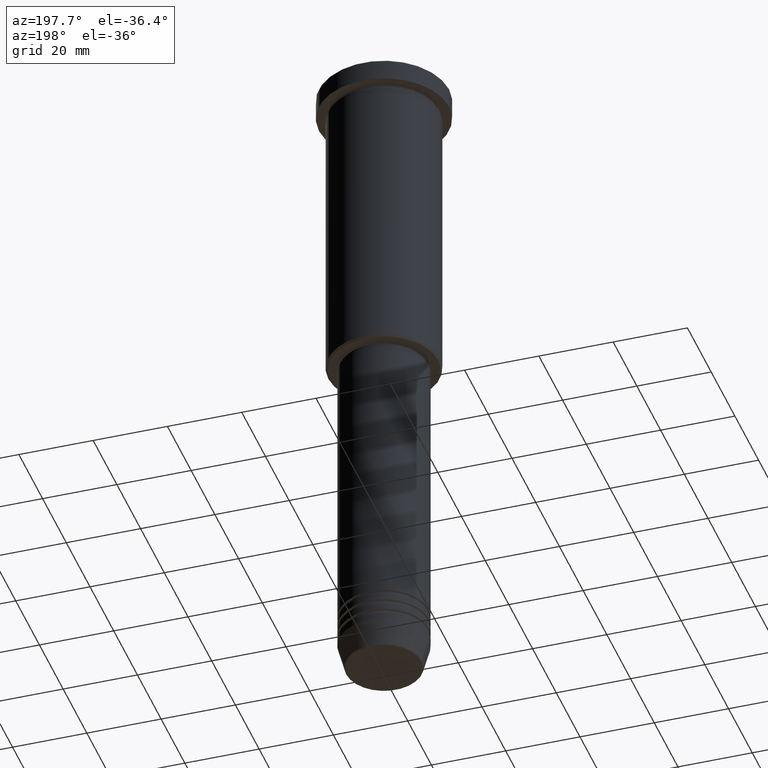
[diagram: clean part render]
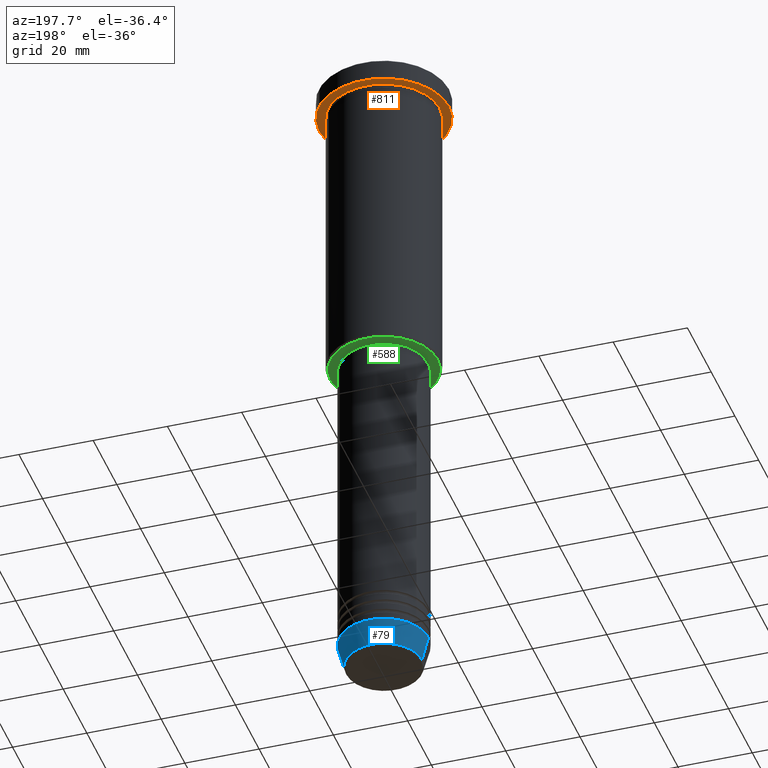
[diagram: same view with three faces highlighted in distinct colors, each labeled with its STEP entity id]
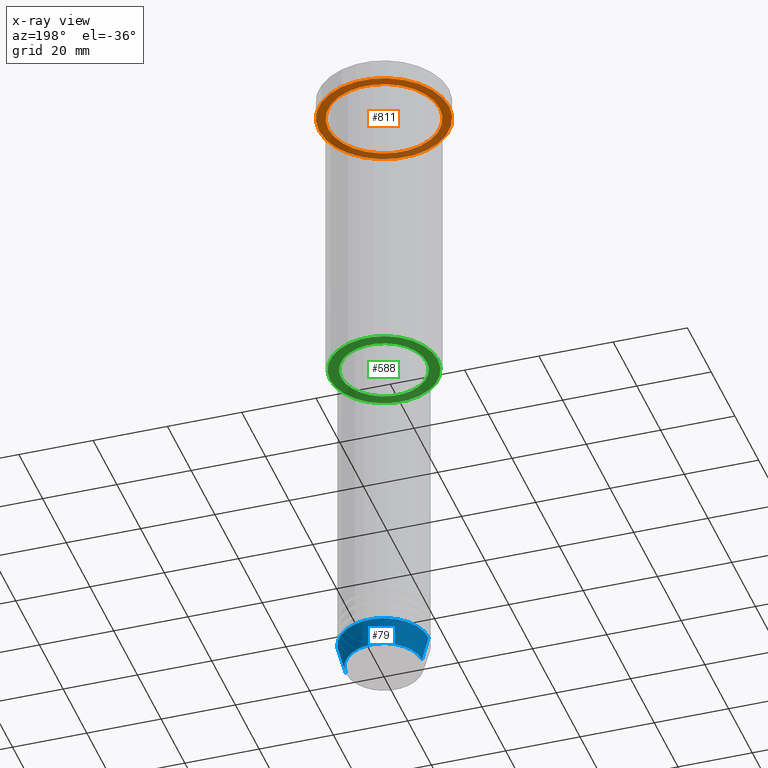
[diagram: x-ray of the same camera — body ghosted, the three highlighted faces saturated]
A machine part, auxiliary view with three faces highlighted in distinct colors.
The next image is the same camera in x-ray (body ghosted, the three faces saturated) — at least one of them is partly hidden behind the body in this view.
Their STEP definitions:

[orange] entity #811 — the highlighted planar face has unit normal (0, 0, -1).
#12 = CARTESIAN_POINT ( 'NONE',  ( 17.50000000000000000, 0.000000000000000000, -5.999999999999995559 ) ) ;
#82 = DIRECTION ( 'NONE',  ( -0.000000000000000000, -0.000000000000000000, 1.000000000000000000 ) ) ;
#84 = EDGE_CURVE ( 'NONE', #190, #949, #931, .T. ) ;
#106 = CIRCLE ( 'NONE', #591, 15.00000000000000000 ) ;
#190 = VERTEX_POINT ( 'NONE', #12 ) ;
#240 = CARTESIAN_POINT ( 'NONE',  ( 0.000000000000000000, 0.000000000000000000, -5.999999999999995559 ) ) ;
#259 = DIRECTION ( 'NONE',  ( 1.000000000000000000, 0.000000000000000000, 0.000000000000000000 ) ) ;
#268 = ORIENTED_EDGE ( 'NONE', *, *, #304, .F. ) ;
#286 = DIRECTION ( 'NONE',  ( 1.000000000000000000, 0.000000000000000000, 0.000000000000000000 ) ) ;
#298 = CIRCLE ( 'NONE', #1119, 17.50000000000000000 ) ;
#304 = EDGE_CURVE ( 'NONE', #949, #190, #298, .T. ) ;
#307 = EDGE_LOOP ( 'NONE', ( #826, #268 ) ) ;
#348 = ORIENTED_EDGE ( 'NONE', *, *, #1126, .T. ) ;
#380 = FACE_OUTER_BOUND ( 'NONE', #307, .T. ) ;
#390 = DIRECTION ( 'NONE',  ( -1.000000000000000000, 0.000000000000000000, 0.000000000000000000 ) ) ;
#412 = VERTEX_POINT ( 'NONE', #652 ) ;
#433 = DIRECTION ( 'NONE',  ( -0.000000000000000000, -0.000000000000000000, 1.000000000000000000 ) ) ;
#525 = DIRECTION ( 'NONE',  ( -1.000000000000000000, 0.000000000000000000, 0.000000000000000000 ) ) ;
#560 = VERTEX_POINT ( 'NONE', #1101 ) ;
#568 = DIRECTION ( 'NONE',  ( -0.000000000000000000, -0.000000000000000000, 1.000000000000000000 ) ) ;
#591 = AXIS2_PLACEMENT_3D ( 'NONE', #240, #433, #525 ) ;
#652 = CARTESIAN_POINT ( 'NONE',  ( 15.00000000000000000, 1.836970198721029589E-15, -5.999999999999994671 ) ) ;
#663 = AXIS2_PLACEMENT_3D ( 'NONE', #1022, #82, #286 ) ;
#701 = EDGE_CURVE ( 'NONE', #412, #560, #1102, .T. ) ;
#703 = EDGE_LOOP ( 'NONE', ( #348, #789 ) ) ;
#722 = PLANE ( 'NONE',  #893 ) ;
#739 = CARTESIAN_POINT ( 'NONE',  ( 0.000000000000000000, 17.50000000000000000, -5.999999999999995559 ) ) ;
#789 = ORIENTED_EDGE ( 'NONE', *, *, #701, .T. ) ;
#811 = ADVANCED_FACE ( 'NONE', ( #1021, #380 ), #722, .T. ) ;
#826 = ORIENTED_EDGE ( 'NONE', *, *, #84, .F. ) ;
#839 = AXIS2_PLACEMENT_3D ( 'NONE', #986, #909, #390 ) ;
#893 = AXIS2_PLACEMENT_3D ( 'NONE', #739, #1005, #1106 ) ;
#909 = DIRECTION ( 'NONE',  ( -0.000000000000000000, -0.000000000000000000, 1.000000000000000000 ) ) ;
#931 = CIRCLE ( 'NONE', #663, 17.50000000000000000 ) ;
#949 = VERTEX_POINT ( 'NONE', #1122 ) ;
#986 = CARTESIAN_POINT ( 'NONE',  ( 0.000000000000000000, 0.000000000000000000, -5.999999999999995559 ) ) ;
#1005 = DIRECTION ( 'NONE',  ( 0.000000000000000000, 0.000000000000000000, -1.000000000000000000 ) ) ;
#1021 = FACE_BOUND ( 'NONE', #703, .T. ) ;
#1022 = CARTESIAN_POINT ( 'NONE',  ( 0.000000000000000000, 0.000000000000000000, -5.999999999999995559 ) ) ;
#1101 = CARTESIAN_POINT ( 'NONE',  ( -15.00000000000000000, 0.000000000000000000, -5.999999999999994671 ) ) ;
#1102 = CIRCLE ( 'NONE', #839, 15.00000000000000000 ) ;
#1106 = DIRECTION ( 'NONE',  ( -1.000000000000000000, 0.000000000000000000, -0.000000000000000000 ) ) ;
#1112 = CARTESIAN_POINT ( 'NONE',  ( 0.000000000000000000, 0.000000000000000000, -5.999999999999995559 ) ) ;
#1119 = AXIS2_PLACEMENT_3D ( 'NONE', #1112, #568, #259 ) ;
#1122 = CARTESIAN_POINT ( 'NONE',  ( -17.50000000000000000, 2.143131898507868248E-15, -5.999999999999995559 ) ) ;
#1126 = EDGE_CURVE ( 'NONE', #560, #412, #106, .T. ) ;

[blue] entity #79 — the highlighted conical surface has half-angle 15 deg.
#49 = LINE ( 'NONE', #958, #758 ) ;
#79 = ADVANCED_FACE ( 'NONE', ( #394 ), #587, .T. ) ;
#129 = ORIENTED_EDGE ( 'NONE', *, *, #142, .T. ) ;
#142 = EDGE_CURVE ( 'NONE', #638, #1025, #173, .T. ) ;
#143 = ORIENTED_EDGE ( 'NONE', *, *, #1118, .F. ) ;
#145 = CARTESIAN_POINT ( 'NONE',  ( 0.000000000000000000, 0.000000000000000000, -174.0000000000000284 ) ) ;
#173 = CIRCLE ( 'NONE', #436, 10.22365507213719660 ) ;
#174 = VERTEX_POINT ( 'NONE', #471 ) ;
#181 = DIRECTION ( 'NONE',  ( 1.000000000000000000, 0.000000000000000000, 0.000000000000000000 ) ) ;
#196 = CARTESIAN_POINT ( 'NONE',  ( 0.000000000000000000, 0.000000000000000000, -174.0000000000000284 ) ) ;
#203 = EDGE_LOOP ( 'NONE', ( #129, #671, #1062, #143 ) ) ;
#233 = DIRECTION ( 'NONE',  ( 0.2588190451025213501, 0.000000000000000000, 0.9659258262890680902 ) ) ;
#264 = DIRECTION ( 'NONE',  ( -0.000000000000000000, -0.000000000000000000, 1.000000000000000000 ) ) ;
#313 = EDGE_CURVE ( 'NONE', #1025, #331, #328, .T. ) ;
#328 = LINE ( 'NONE', #808, #736 ) ;
#331 = VERTEX_POINT ( 'NONE', #626 ) ;
#335 = AXIS2_PLACEMENT_3D ( 'NONE', #196, #745, #662 ) ;
#394 = FACE_OUTER_BOUND ( 'NONE', #203, .T. ) ;
#414 = DIRECTION ( 'NONE',  ( -0.2588190451025213501, 3.169619151431772337E-17, 0.9659258262890680902 ) ) ;
#436 = AXIS2_PLACEMENT_3D ( 'NONE', #991, #830, #181 ) ;
#471 = CARTESIAN_POINT ( 'NONE',  ( 12.00000000000000000, 0.000000000000000000, -174.0000000000000284 ) ) ;
#575 = AXIS2_PLACEMENT_3D ( 'NONE', #145, #264, #642 ) ;
#587 = CONICAL_SURFACE ( 'NONE', #335, 12.00000000000000000, 0.2617993877991500740 ) ;
#626 = CARTESIAN_POINT ( 'NONE',  ( -12.00000000000000000, 1.469576158976823947E-15, -174.0000000000000284 ) ) ;
#638 = VERTEX_POINT ( 'NONE', #757 ) ;
#642 = DIRECTION ( 'NONE',  ( 1.000000000000000000, 0.000000000000000000, 0.000000000000000000 ) ) ;
#662 = DIRECTION ( 'NONE',  ( 1.000000000000000000, 0.000000000000000000, 0.000000000000000000 ) ) ;
#670 = CARTESIAN_POINT ( 'NONE',  ( -10.22365507213719837, 1.360806402472383336E-15, -180.6294095225512706 ) ) ;
#671 = ORIENTED_EDGE ( 'NONE', *, *, #313, .T. ) ;
#688 = EDGE_CURVE ( 'NONE', #174, #331, #966, .T. ) ;
#736 = VECTOR ( 'NONE', #414, 1000.000000000000000 ) ;
#745 = DIRECTION ( 'NONE',  ( -0.000000000000000000, -0.000000000000000000, 1.000000000000000000 ) ) ;
#757 = CARTESIAN_POINT ( 'NONE',  ( 10.22365507213719660, 0.000000000000000000, -180.6294095225512706 ) ) ;
#758 = VECTOR ( 'NONE', #233, 1000.000000000000000 ) ;
#808 = CARTESIAN_POINT ( 'NONE',  ( -12.00000000000000000, 1.469576158976823947E-15, -174.0000000000000284 ) ) ;
#830 = DIRECTION ( 'NONE',  ( -0.000000000000000000, -0.000000000000000000, 1.000000000000000000 ) ) ;
#958 = CARTESIAN_POINT ( 'NONE',  ( 12.00000000000000000, 0.000000000000000000, -174.0000000000000284 ) ) ;
#966 = CIRCLE ( 'NONE', #575, 12.00000000000000000 ) ;
#991 = CARTESIAN_POINT ( 'NONE',  ( 0.000000000000000000, 0.000000000000000000, -180.6294095225512706 ) ) ;
#1025 = VERTEX_POINT ( 'NONE', #670 ) ;
#1062 = ORIENTED_EDGE ( 'NONE', *, *, #688, .F. ) ;
#1118 = EDGE_CURVE ( 'NONE', #638, #174, #49, .T. ) ;

[green] entity #588 — the highlighted planar face has unit normal (0, 0, -1).
#36 = ORIENTED_EDGE ( 'NONE', *, *, #903, .T. ) ;
#90 = DIRECTION ( 'NONE',  ( -1.000000000000000000, 0.000000000000000000, 0.000000000000000000 ) ) ;
#152 = FACE_BOUND ( 'NONE', #708, .T. ) ;
#200 = AXIS2_PLACEMENT_3D ( 'NONE', #917, #1180, #376 ) ;
#276 = DIRECTION ( 'NONE',  ( 0.000000000000000000, 0.000000000000000000, -1.000000000000000000 ) ) ;
#360 = ORIENTED_EDGE ( 'NONE', *, *, #750, .T. ) ;
#376 = DIRECTION ( 'NONE',  ( -1.000000000000000000, 0.000000000000000000, -0.000000000000000000 ) ) ;
#379 = VERTEX_POINT ( 'NONE', #1063 ) ;
#458 = AXIS2_PLACEMENT_3D ( 'NONE', #566, #744, #90 ) ;
#459 = CARTESIAN_POINT ( 'NONE',  ( 0.000000000000000000, 0.000000000000000000, -86.00000000000000000 ) ) ;
#483 = VERTEX_POINT ( 'NONE', #523 ) ;
#512 = CARTESIAN_POINT ( 'NONE',  ( 11.50000000000000000, 0.000000000000000000, -86.00000000000000000 ) ) ;
#523 = CARTESIAN_POINT ( 'NONE',  ( -14.49999999999996980, 1.806354028742344224E-15, -86.00000000000000000 ) ) ;
#553 = PLANE ( 'NONE',  #200 ) ;
#566 = CARTESIAN_POINT ( 'NONE',  ( 0.000000000000000000, 0.000000000000000000, -86.00000000000000000 ) ) ;
#588 = ADVANCED_FACE ( 'NONE', ( #998, #152 ), #553, .T. ) ;
#611 = ORIENTED_EDGE ( 'NONE', *, *, #737, .T. ) ;
#613 = AXIS2_PLACEMENT_3D ( 'NONE', #1076, #784, #707 ) ;
#647 = CIRCLE ( 'NONE', #853, 14.49999999999996980 ) ;
#653 = VERTEX_POINT ( 'NONE', #910 ) ;
#664 = CARTESIAN_POINT ( 'NONE',  ( 0.000000000000000000, 0.000000000000000000, -86.00000000000000000 ) ) ;
#684 = CIRCLE ( 'NONE', #872, 11.50000000000000000 ) ;
#707 = DIRECTION ( 'NONE',  ( 1.000000000000000000, 0.000000000000000000, 0.000000000000000000 ) ) ;
#708 = EDGE_LOOP ( 'NONE', ( #36, #1053 ) ) ;
#737 = EDGE_CURVE ( 'NONE', #483, #653, #1172, .T. ) ;
#744 = DIRECTION ( 'NONE',  ( 0.000000000000000000, 0.000000000000000000, -1.000000000000000000 ) ) ;
#750 = EDGE_CURVE ( 'NONE', #653, #483, #647, .T. ) ;
#784 = DIRECTION ( 'NONE',  ( -0.000000000000000000, -0.000000000000000000, 1.000000000000000000 ) ) ;
#833 = DIRECTION ( 'NONE',  ( -1.000000000000000000, 0.000000000000000000, 0.000000000000000000 ) ) ;
#853 = AXIS2_PLACEMENT_3D ( 'NONE', #459, #276, #833 ) ;
#872 = AXIS2_PLACEMENT_3D ( 'NONE', #664, #942, #1028 ) ;
#903 = EDGE_CURVE ( 'NONE', #1072, #379, #684, .T. ) ;
#910 = CARTESIAN_POINT ( 'NONE',  ( 14.49999999999996980, 0.000000000000000000, -86.00000000000000000 ) ) ;
#917 = CARTESIAN_POINT ( 'NONE',  ( 0.000000000000000000, 15.00000000000000000, -86.00000000000000000 ) ) ;
#921 = EDGE_LOOP ( 'NONE', ( #360, #611 ) ) ;
#936 = CIRCLE ( 'NONE', #613, 11.50000000000000000 ) ;
#942 = DIRECTION ( 'NONE',  ( -0.000000000000000000, -0.000000000000000000, 1.000000000000000000 ) ) ;
#998 = FACE_OUTER_BOUND ( 'NONE', #921, .T. ) ;
#1028 = DIRECTION ( 'NONE',  ( 1.000000000000000000, 0.000000000000000000, 0.000000000000000000 ) ) ;
#1053 = ORIENTED_EDGE ( 'NONE', *, *, #1178, .T. ) ;
#1063 = CARTESIAN_POINT ( 'NONE',  ( -11.50000000000000000, 1.408343819019456176E-15, -86.00000000000000000 ) ) ;
#1072 = VERTEX_POINT ( 'NONE', #512 ) ;
#1076 = CARTESIAN_POINT ( 'NONE',  ( 0.000000000000000000, 0.000000000000000000, -86.00000000000000000 ) ) ;
#1172 = CIRCLE ( 'NONE', #458, 14.49999999999996980 ) ;
#1178 = EDGE_CURVE ( 'NONE', #379, #1072, #936, .T. ) ;
#1180 = DIRECTION ( 'NONE',  ( 0.000000000000000000, 0.000000000000000000, -1.000000000000000000 ) ) ;